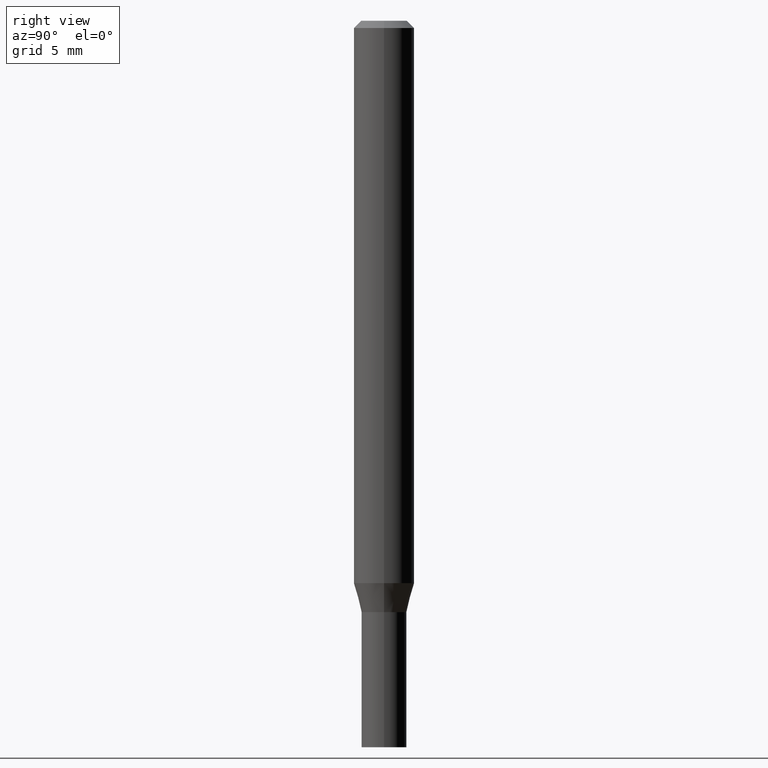
[diagram: clean part render]
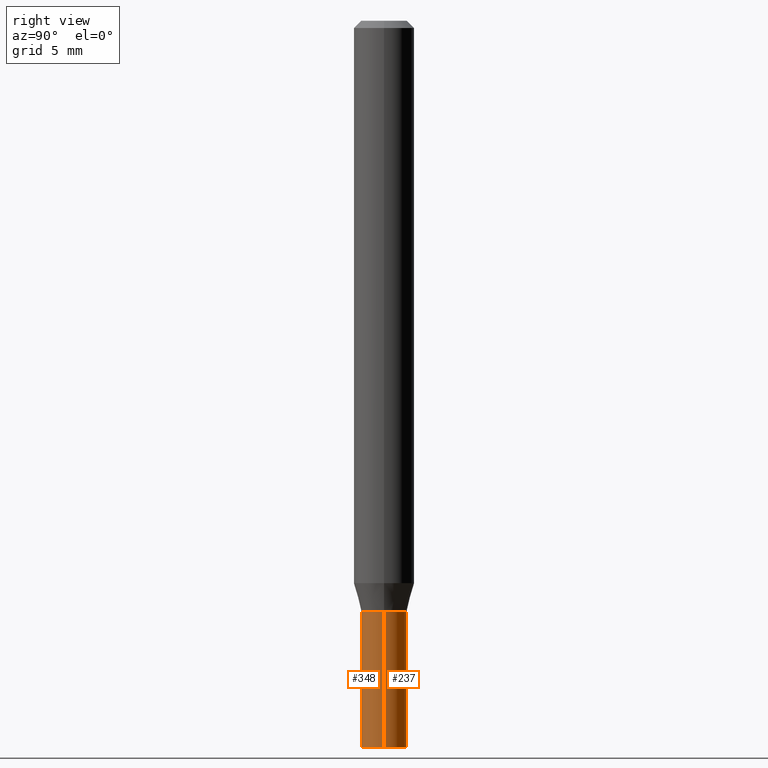
[diagram: same view with one multi-face feature highlighted, each face labeled with its STEP entity id]
A machine part, right view. The highlighted faces form ONE feature: a constant-radius fillet chain: 2 tangent blend faces with common blend radius 1.1811 mm. The faces share edges in the B-rep.
Their STEP definitions:
[1] entity #237 (Cylinder):
#1 = CARTESIAN_POINT ( 'NONE',  ( -0.04649999999999999967, -4.419757989367653263E-15, -1.221000000000000085 ) ) ;
#24 = EDGE_LOOP ( 'NONE', ( #60, #62, #379, #93 ) ) ;
#60 = ORIENTED_EDGE ( 'NONE', *, *, #168, .T. ) ;
#62 = ORIENTED_EDGE ( 'NONE', *, *, #294, .T. ) ;
#64 = CIRCLE ( 'NONE', #330, 0.04649999999999999967 ) ;
#79 = VERTEX_POINT ( 'NONE', #257 ) ;
#81 = CARTESIAN_POINT ( 'NONE',  ( 0.04649999999999999967, -4.587806479239892817E-15, -1.221000000000000085 ) ) ;
#93 = ORIENTED_EDGE ( 'NONE', *, *, #315, .F. ) ;
#117 = DIRECTION ( 'NONE',  ( -2.445468806185136877E-29, 3.491481338843145188E-15, 1.000000000000000000 ) ) ;
#144 = DIRECTION ( 'NONE',  ( 1.000000000000000000, -6.982962677686267499E-15, 4.876176775795936353E-29 ) ) ;
#145 = VECTOR ( 'NONE', #148, 39.37007874015748143 ) ;
#148 = DIRECTION ( 'NONE',  ( -2.445468806185136877E-29, 3.491481338843145188E-15, 1.000000000000000000 ) ) ;
#168 = EDGE_CURVE ( 'NONE', #196, #79, #248, .T. ) ;
#196 = VERTEX_POINT ( 'NONE', #428 ) ;
#210 = VECTOR ( 'NONE', #117, 39.37007874015748143 ) ;
#224 = LINE ( 'NONE', #443, #145 ) ;
#237 = ADVANCED_FACE ( 'NONE', ( #463 ), #391, .T. ) ;
#248 = CIRCLE ( 'NONE', #372, 0.04649999999999999967 ) ;
#257 = CARTESIAN_POINT ( 'NONE',  ( -0.04649999999999999967, -4.419757989367653263E-15, -1.500000000000000222 ) ) ;
#269 = LINE ( 'NONE', #335, #210 ) ;
#275 = VERTEX_POINT ( 'NONE', #1 ) ;
#281 = CARTESIAN_POINT ( 'NONE',  ( 3.668203209277704895E-29, -5.237222008264718177E-15, -1.500000000000000222 ) ) ;
#294 = EDGE_CURVE ( 'NONE', #79, #275, #269, .T. ) ;
#315 = EDGE_CURVE ( 'NONE', #196, #341, #224, .T. ) ;
#330 = AXIS2_PLACEMENT_3D ( 'NONE', #365, #402, #340 ) ;
#335 = CARTESIAN_POINT ( 'NONE',  ( -0.04649999999999999967, 3.304023721284465841E-16, -2.287304816968531530E-30 ) ) ;
#337 = EDGE_CURVE ( 'NONE', #341, #275, #64, .T. ) ;
#340 = DIRECTION ( 'NONE',  ( 1.000000000000000000, -6.982962677686260400E-15, 0.000000000000000000 ) ) ;
#341 = VERTEX_POINT ( 'NONE', #81 ) ;
#365 = CARTESIAN_POINT ( 'NONE',  ( 2.985917412352052273E-29, -4.263098714727481320E-15, -1.221000000000000085 ) ) ;
#372 = AXIS2_PLACEMENT_3D ( 'NONE', #281, #432, #460 ) ;
#379 = ORIENTED_EDGE ( 'NONE', *, *, #337, .F. ) ;
#391 = CYLINDRICAL_SURFACE ( 'NONE', #453, 0.04649999999999999967 ) ;
#399 = CARTESIAN_POINT ( 'NONE',  ( 0.000000000000000000, 0.000000000000000000, 0.000000000000000000 ) ) ;
#402 = DIRECTION ( 'NONE',  ( -2.445468806185136597E-29, 3.491481338843145583E-15, 1.000000000000000000 ) ) ;
#428 = CARTESIAN_POINT ( 'NONE',  ( 0.04649999999999999967, -5.561929772777129673E-15, -1.500000000000000222 ) ) ;
#432 = DIRECTION ( 'NONE',  ( -2.445468806185136597E-29, 3.491481338843145583E-15, 1.000000000000000000 ) ) ;
#443 = CARTESIAN_POINT ( 'NONE',  ( 0.04649999999999999967, -3.247077645124114474E-16, 2.267422200745110326E-30 ) ) ;
#453 = AXIS2_PLACEMENT_3D ( 'NONE', #399, #465, #144 ) ;
#460 = DIRECTION ( 'NONE',  ( 1.000000000000000000, -6.982962677686260400E-15, 0.000000000000000000 ) ) ;
#463 = FACE_OUTER_BOUND ( 'NONE', #24, .T. ) ;
#465 = DIRECTION ( 'NONE',  ( -2.445468806185136597E-29, 3.491481338843145583E-15, 1.000000000000000000 ) ) ;
[2] entity #348 (Cylinder):
#1 = CARTESIAN_POINT ( 'NONE',  ( -0.04649999999999999967, -4.419757989367653263E-15, -1.221000000000000085 ) ) ;
#42 = DIRECTION ( 'NONE',  ( 1.000000000000000000, -6.982962677686267499E-15, 4.876176775795936353E-29 ) ) ;
#48 = EDGE_CURVE ( 'NONE', #275, #341, #350, .T. ) ;
#55 = CIRCLE ( 'NONE', #304, 0.04649999999999999967 ) ;
#79 = VERTEX_POINT ( 'NONE', #257 ) ;
#81 = CARTESIAN_POINT ( 'NONE',  ( 0.04649999999999999967, -4.587806479239892817E-15, -1.221000000000000085 ) ) ;
#97 = AXIS2_PLACEMENT_3D ( 'NONE', #123, #292, #42 ) ;
#117 = DIRECTION ( 'NONE',  ( -2.445468806185136877E-29, 3.491481338843145188E-15, 1.000000000000000000 ) ) ;
#123 = CARTESIAN_POINT ( 'NONE',  ( 0.000000000000000000, 0.000000000000000000, 0.000000000000000000 ) ) ;
#124 = DIRECTION ( 'NONE',  ( -2.445468806185136597E-29, 3.491481338843145583E-15, 1.000000000000000000 ) ) ;
#145 = VECTOR ( 'NONE', #148, 39.37007874015748143 ) ;
#148 = DIRECTION ( 'NONE',  ( -2.445468806185136877E-29, 3.491481338843145188E-15, 1.000000000000000000 ) ) ;
#158 = DIRECTION ( 'NONE',  ( 1.000000000000000000, -6.982962677686260400E-15, 0.000000000000000000 ) ) ;
#164 = DIRECTION ( 'NONE',  ( -2.445468806185136597E-29, 3.491481338843145583E-15, 1.000000000000000000 ) ) ;
#196 = VERTEX_POINT ( 'NONE', #428 ) ;
#203 = ORIENTED_EDGE ( 'NONE', *, *, #294, .F. ) ;
#210 = VECTOR ( 'NONE', #117, 39.37007874015748143 ) ;
#224 = LINE ( 'NONE', #443, #145 ) ;
#257 = CARTESIAN_POINT ( 'NONE',  ( -0.04649999999999999967, -4.419757989367653263E-15, -1.500000000000000222 ) ) ;
#267 = ORIENTED_EDGE ( 'NONE', *, *, #48, .F. ) ;
#269 = LINE ( 'NONE', #335, #210 ) ;
#275 = VERTEX_POINT ( 'NONE', #1 ) ;
#292 = DIRECTION ( 'NONE',  ( -2.445468806185136597E-29, 3.491481338843145583E-15, 1.000000000000000000 ) ) ;
#294 = EDGE_CURVE ( 'NONE', #79, #275, #269, .T. ) ;
#300 = FACE_OUTER_BOUND ( 'NONE', #416, .T. ) ;
#304 = AXIS2_PLACEMENT_3D ( 'NONE', #312, #124, #158 ) ;
#308 = DIRECTION ( 'NONE',  ( 1.000000000000000000, -6.982962677686260400E-15, 0.000000000000000000 ) ) ;
#312 = CARTESIAN_POINT ( 'NONE',  ( 3.668203209277704895E-29, -5.237222008264718177E-15, -1.500000000000000222 ) ) ;
#315 = EDGE_CURVE ( 'NONE', #196, #341, #224, .T. ) ;
#319 = ORIENTED_EDGE ( 'NONE', *, *, #400, .T. ) ;
#335 = CARTESIAN_POINT ( 'NONE',  ( -0.04649999999999999967, 3.304023721284465841E-16, -2.287304816968531530E-30 ) ) ;
#341 = VERTEX_POINT ( 'NONE', #81 ) ;
#342 = CARTESIAN_POINT ( 'NONE',  ( 2.985917412352052273E-29, -4.263098714727481320E-15, -1.221000000000000085 ) ) ;
#347 = ORIENTED_EDGE ( 'NONE', *, *, #315, .T. ) ;
#348 = ADVANCED_FACE ( 'NONE', ( #300 ), #440, .T. ) ;
#350 = CIRCLE ( 'NONE', #388, 0.04649999999999999967 ) ;
#388 = AXIS2_PLACEMENT_3D ( 'NONE', #342, #164, #308 ) ;
#400 = EDGE_CURVE ( 'NONE', #79, #196, #55, .T. ) ;
#416 = EDGE_LOOP ( 'NONE', ( #203, #319, #347, #267 ) ) ;
#428 = CARTESIAN_POINT ( 'NONE',  ( 0.04649999999999999967, -5.561929772777129673E-15, -1.500000000000000222 ) ) ;
#440 = CYLINDRICAL_SURFACE ( 'NONE', #97, 0.04649999999999999967 ) ;
#443 = CARTESIAN_POINT ( 'NONE',  ( 0.04649999999999999967, -3.247077645124114474E-16, 2.267422200745110326E-30 ) ) ;